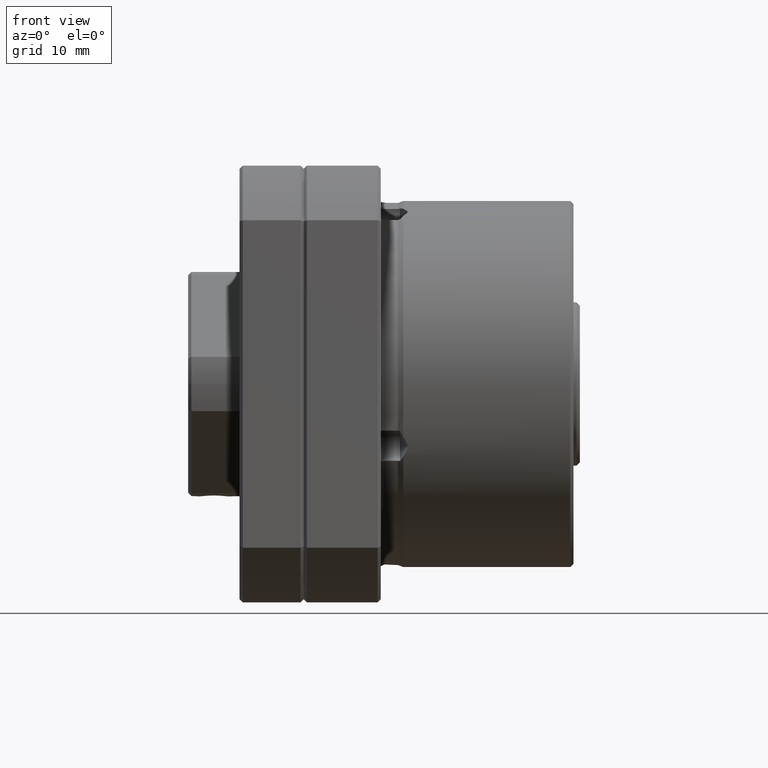
[diagram: clean part render]
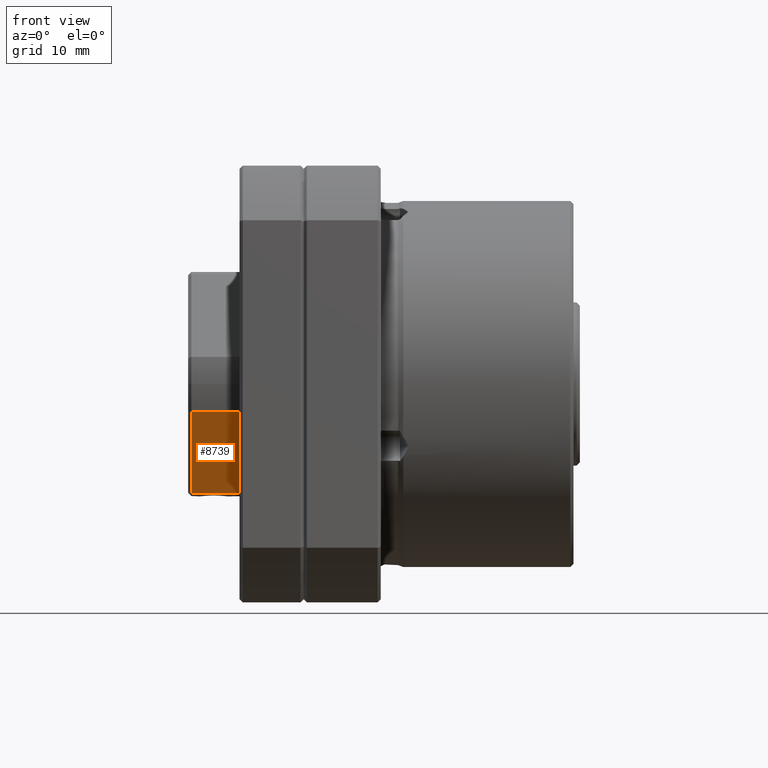
[diagram: same view with one face highlighted and labeled with its STEP entity id]
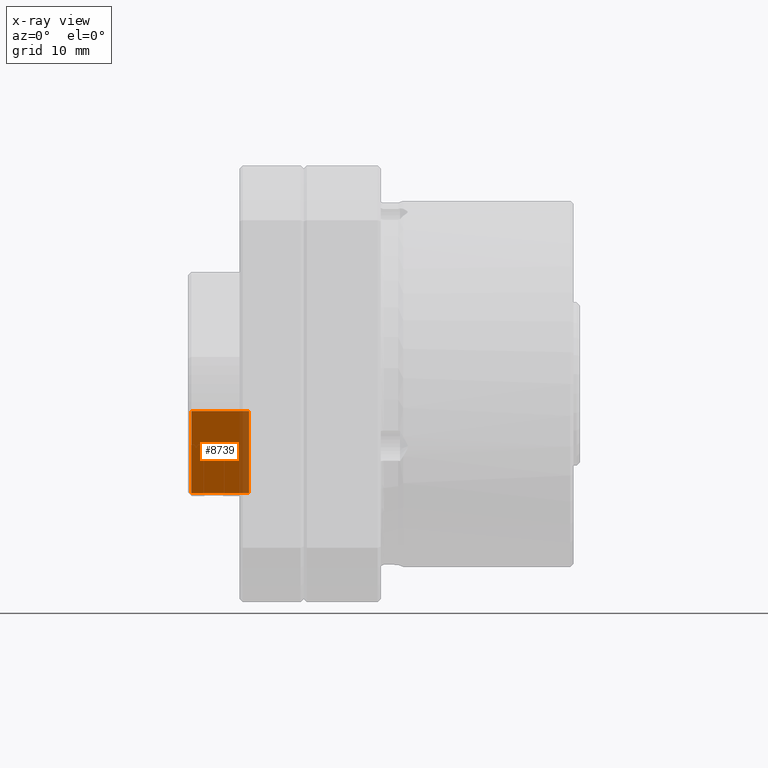
[diagram: x-ray of the same camera — body ghosted, the highlighted face saturated]
A machine part, front view. The second image highlights one B-rep face of the part: STEP entity #8739.
The next image is the same camera in x-ray: the body ghosted, the highlighted face saturated — about 17% of this face is hidden behind the body in this view.
In plain terms, the highlighted planar face has unit normal (0, -0.7071, -0.7071).
Its self-contained STEP definition (entity closure, byte-faithful):
#8458 = VERTEX_POINT ( 'NONE', #13600 ) ;
#8459 = VERTEX_POINT ( 'NONE', #13599 ) ;
#8509 = VERTEX_POINT ( 'NONE', #13743 ) ;
#8514 = EDGE_CURVE ( 'NONE', #8515, #8509, #13740, .T. ) ;
#8515 = VERTEX_POINT ( 'NONE', #13736 ) ;
#8538 = EDGE_CURVE ( 'NONE', #8458, #8459, #13802, .T. ) ;
#8661 = EDGE_LOOP ( 'NONE', ( #8663, #8665, #8670, #8699 ) ) ;
#8663 = ORIENTED_EDGE ( 'NONE', *, *, #8514, .T. ) ;
#8665 = ORIENTED_EDGE ( 'NONE', *, *, #8667, .T. ) ;
#8667 = EDGE_CURVE ( 'NONE', #8509, #8458, #14007, .T. ) ;
#8670 = ORIENTED_EDGE ( 'NONE', *, *, #8538, .T. ) ;
#8699 = ORIENTED_EDGE ( 'NONE', *, *, #8701, .T. ) ;
#8701 = EDGE_CURVE ( 'NONE', #8459, #8515, #14124, .T. ) ;
#8739 = ADVANCED_FACE ( 'NONE', ( #14165 ), #14164, .T. ) ;
#13599 = CARTESIAN_POINT ( 'NONE',  ( -8.500000000000007100, -4.232827325807367200, -16.98037610978915500 ) ) ;
#13600 = CARTESIAN_POINT ( 'NONE',  ( -17.49999999999999600, -4.232827325807367200, -16.98037610978915500 ) ) ;
#13736 = CARTESIAN_POINT ( 'NONE',  ( -8.500000000000003600, -16.98037610978915900, -4.232827325807336100 ) ) ;
#13737 = DIRECTION ( 'NONE',  ( -1.000000000000000000, -2.465190328815661900E-032, 4.617340812406241300E-048 ) ) ;
#13738 = VECTOR ( 'NONE', #13737, 1000.000000000000000 ) ;
#13739 = CARTESIAN_POINT ( 'NONE',  ( 23.67746478873239400, -16.98037610978916200, -4.232827325807336100 ) ) ;
#13740 = LINE ( 'NONE', #13739, #13738 ) ;
#13743 = CARTESIAN_POINT ( 'NONE',  ( -17.49999999999999300, -16.98037610978916200, -4.232827325807336100 ) ) ;
#13799 = DIRECTION ( 'NONE',  ( 1.000000000000000000, 2.465190328815661900E-032, -4.617340812406241300E-048 ) ) ;
#13800 = VECTOR ( 'NONE', #13799, 1000.000000000000000 ) ;
#13801 = CARTESIAN_POINT ( 'NONE',  ( 23.67746478873239400, -4.232827325807367200, -16.98037610978915500 ) ) ;
#13802 = LINE ( 'NONE', #13801, #13800 ) ;
#14005 = VECTOR ( 'NONE', #14066, 1000.000000000000000 ) ;
#14006 = CARTESIAN_POINT ( 'NONE',  ( -17.49999999999999600, -4.232827325807364500, -16.98037610978915200 ) ) ;
#14007 = LINE ( 'NONE', #14006, #14005 ) ;
#14066 = DIRECTION ( 'NONE',  ( 0.0000000000000000000, 0.7071067811865469100, -0.7071067811865482400 ) ) ;
#14121 = DIRECTION ( 'NONE',  ( 0.0000000000000000000, -0.7071067811865469100, 0.7071067811865482400 ) ) ;
#14122 = VECTOR ( 'NONE', #14121, 1000.000000000000000 ) ;
#14123 = CARTESIAN_POINT ( 'NONE',  ( -8.500000000000007100, -16.98037610978915900, -4.232827325807335200 ) ) ;
#14124 = LINE ( 'NONE', #14123, #14122 ) ;
#14159 = DIRECTION ( 'NONE',  ( -1.324422281451353900E-016, 0.7071067811865469100, -0.7071067811865482400 ) ) ;
#14160 = DIRECTION ( 'NONE',  ( 1.232595164407830900E-032, -0.7071067811865482400, -0.7071067811865469100 ) ) ;
#14161 = AXIS2_PLACEMENT_3D ( 'NONE', #14163, #14160, #14159 ) ;
#14163 = CARTESIAN_POINT ( 'NONE',  ( -6.999999999999999100, -8.423546403822807200E-014, -21.21320343559644100 ) ) ;
#14164 = PLANE ( 'NONE',  #14161 ) ;
#14165 = FACE_OUTER_BOUND ( 'NONE', #8661, .T. ) ;